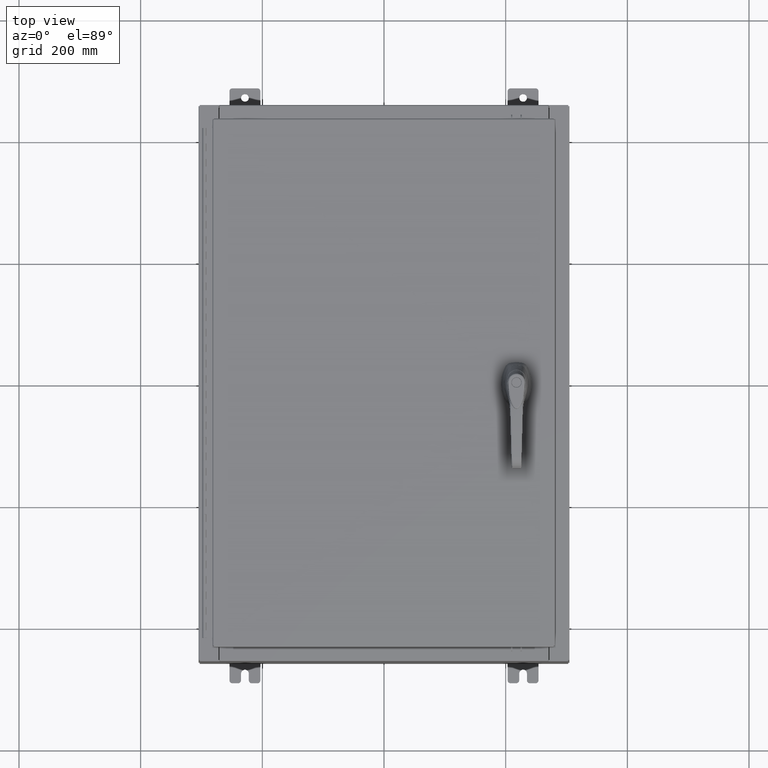
[diagram: clean part render]
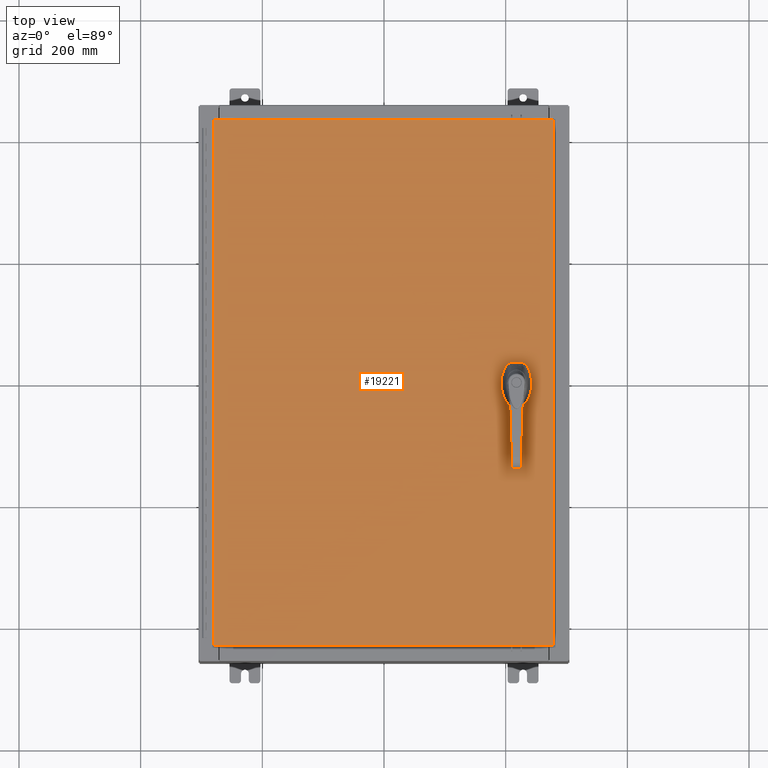
[diagram: same view with one face highlighted and labeled with its STEP entity id]
A machine part, top view. The second image highlights one B-rep face of the part: STEP entity #19221.
In plain terms, the highlighted planar face has unit normal (0, 0, -1).
Its self-contained STEP definition (entity closure, byte-faithful):
#834 = ORIENTED_EDGE ( 'NONE', *, *, #61946, .F. ) ;
#1081 = EDGE_LOOP ( 'NONE', ( #44366, #115699, #44043, #28251 ) ) ;
#1870 = EDGE_CURVE ( 'NONE', #55670, #34717, #4489, .T. ) ;
#1903 = VECTOR ( 'NONE', #99491, 39.37007874015748100 ) ;
#3862 = ORIENTED_EDGE ( 'NONE', *, *, #48414, .F. ) ;
#4440 = CARTESIAN_POINT ( 'NONE',  ( -10.99030000000000000, -17.00629999999999600, -2.048885995248197400E-016 ) ) ;
#4489 = LINE ( 'NONE', #18400, #122038 ) ;
#5265 = DIRECTION ( 'NONE',  ( -0.0000000000000000000, 0.0000000000000000000, 1.000000000000000000 ) ) ;
#6307 = VECTOR ( 'NONE', #29961, 39.37007874015748100 ) ;
#6599 = EDGE_CURVE ( 'NONE', #34717, #21752, #119972, .T. ) ;
#7768 = VERTEX_POINT ( 'NONE', #11355 ) ;
#8013 = CARTESIAN_POINT ( 'NONE',  ( 10.99029999999999600, -17.00629999999999200, -2.048885995248197400E-016 ) ) ;
#8557 = CARTESIAN_POINT ( 'NONE',  ( 8.778227370756305000, -0.4029999999999252000, 0.0000000000000000000 ) ) ;
#9651 = EDGE_LOOP ( 'NONE', ( #75545, #834, #97798, #29613, #20323, #105264, #113049, #111257 ) ) ;
#10014 = EDGE_CURVE ( 'NONE', #61696, #65025, #76400, .T. ) ;
#10288 = VERTEX_POINT ( 'NONE', #10877 ) ;
#10877 = CARTESIAN_POINT ( 'NONE',  ( 8.175000000000070000, -0.2002273707563079800, 0.0000000000000000000 ) ) ;
#11355 = CARTESIAN_POINT ( 'NONE',  ( 8.749499999999997600, -1.338000000000000100, 0.0000000000000000000 ) ) ;
#11398 = DIRECTION ( 'NONE',  ( 0.0000000000000000000, -1.000000000000000000, 0.0000000000000000000 ) ) ;
#14219 = CARTESIAN_POINT ( 'NONE',  ( 8.577999999999995900, -1.338000000000000100, 0.0000000000000000000 ) ) ;
#18400 = CARTESIAN_POINT ( 'NONE',  ( 0.0000000000000000000, 0.4029999999999252000, 0.0000000000000000000 ) ) ;
#19130 = EDGE_CURVE ( 'NONE', #65025, #123098, #66070, .T. ) ;
#19221 = ADVANCED_FACE ( 'NONE', ( #57144, #85376, #31720 ), #31426, .F. ) ;
#20323 = ORIENTED_EDGE ( 'NONE', *, *, #45690, .F. ) ;
#21752 = VERTEX_POINT ( 'NONE', #86114 ) ;
#23034 = AXIS2_PLACEMENT_3D ( 'NONE', #98423, #41377, #107981 ) ;
#23841 = DIRECTION ( 'NONE',  ( 1.000000000000000000, 0.0000000000000000000, 0.0000000000000000000 ) ) ;
#25267 = CARTESIAN_POINT ( 'NONE',  ( 10.99029999999999800, 17.00630000000000700, -2.048885995248197400E-016 ) ) ;
#26606 = VECTOR ( 'NONE', #84015, 39.37007874015748100 ) ;
#27871 = VERTEX_POINT ( 'NONE', #116179 ) ;
#28251 = ORIENTED_EDGE ( 'NONE', *, *, #19130, .T. ) ;
#28272 = EDGE_CURVE ( 'NONE', #83616, #104662, #80258, .T. ) ;
#29613 = ORIENTED_EDGE ( 'NONE', *, *, #102169, .F. ) ;
#29961 = DIRECTION ( 'NONE',  ( -1.000000000000000000, -0.0000000000000000000, -0.0000000000000000000 ) ) ;
#30103 = DIRECTION ( 'NONE',  ( -0.0000000000000000000, 0.0000000000000000000, 1.000000000000000000 ) ) ;
#30189 = CIRCLE ( 'NONE', #58421, 0.4499999999999156900 ) ;
#31426 = PLANE ( 'NONE',  #102783 ) ;
#31602 = CARTESIAN_POINT ( 'NONE',  ( 8.377772629243686700, 0.4029999999999252000, 0.0000000000000000000 ) ) ;
#31720 = FACE_BOUND ( 'NONE', #9651, .T. ) ;
#32012 = CIRCLE ( 'NONE', #113067, 0.1715000000000011500 ) ;
#32449 = CIRCLE ( 'NONE', #103871, 0.1715000000000011500 ) ;
#32904 = AXIS2_PLACEMENT_3D ( 'NONE', #110816, #53888, #120334 ) ;
#34717 = VERTEX_POINT ( 'NONE', #31602 ) ;
#35461 = CARTESIAN_POINT ( 'NONE',  ( 8.377772629243686700, -0.4029999999999252000, 0.0000000000000000000 ) ) ;
#35789 = VECTOR ( 'NONE', #45949, 39.37007874015748100 ) ;
#36516 = CARTESIAN_POINT ( 'NONE',  ( 0.0000000000000000000, -0.4029999999999252000, 0.0000000000000000000 ) ) ;
#36897 = VECTOR ( 'NONE', #37729, 39.37007874015748100 ) ;
#37729 = DIRECTION ( 'NONE',  ( 1.000000000000000000, -0.0000000000000000000, -0.0000000000000000000 ) ) ;
#37947 = VERTEX_POINT ( 'NONE', #53220 ) ;
#39104 = DIRECTION ( 'NONE',  ( -0.0000000000000000000, 0.0000000000000000000, 1.000000000000000000 ) ) ;
#41377 = DIRECTION ( 'NONE',  ( -0.0000000000000000000, 0.0000000000000000000, 1.000000000000000000 ) ) ;
#41619 = CARTESIAN_POINT ( 'NONE',  ( 8.980999999999921700, 2.450686610769031800E-014, 0.0000000000000000000 ) ) ;
#42807 = EDGE_CURVE ( 'NONE', #123098, #27871, #112831, .T. ) ;
#44043 = ORIENTED_EDGE ( 'NONE', *, *, #10014, .T. ) ;
#44366 = ORIENTED_EDGE ( 'NONE', *, *, #42807, .T. ) ;
#45690 = EDGE_CURVE ( 'NONE', #21752, #10288, #66701, .T. ) ;
#45949 = DIRECTION ( 'NONE',  ( 0.0000000000000000000, 1.000000000000000000, 0.0000000000000000000 ) ) ;
#48414 = EDGE_CURVE ( 'NONE', #37947, #7768, #32012, .T. ) ;
#50597 = DIRECTION ( 'NONE',  ( 0.0000000000000000000, 0.0000000000000000000, -1.000000000000000000 ) ) ;
#53112 = DIRECTION ( 'NONE',  ( -1.000000000000000000, 0.0000000000000000000, 0.0000000000000000000 ) ) ;
#53220 = CARTESIAN_POINT ( 'NONE',  ( 8.406499999999994100, -1.338000000000000100, 0.0000000000000000000 ) ) ;
#53888 = DIRECTION ( 'NONE',  ( -0.0000000000000000000, 0.0000000000000000000, 1.000000000000000000 ) ) ;
#55670 = VERTEX_POINT ( 'NONE', #63604 ) ;
#57144 = FACE_BOUND ( 'NONE', #107548, .T. ) ;
#58421 = AXIS2_PLACEMENT_3D ( 'NONE', #87174, #30103, #96706 ) ;
#61261 = LINE ( 'NONE', #8013, #35789 ) ;
#61696 = VERTEX_POINT ( 'NONE', #25267 ) ;
#61946 = EDGE_CURVE ( 'NONE', #104662, #121858, #75425, .T. ) ;
#63287 = CARTESIAN_POINT ( 'NONE',  ( 8.175000000000070000, 0.0000000000000000000, 0.0000000000000000000 ) ) ;
#63604 = CARTESIAN_POINT ( 'NONE',  ( 8.778227370756305000, 0.4029999999999252000, 0.0000000000000000000 ) ) ;
#65025 = VERTEX_POINT ( 'NONE', #99095 ) ;
#66070 = LINE ( 'NONE', #78080, #116601 ) ;
#66701 = LINE ( 'NONE', #63287, #89023 ) ;
#73848 = EDGE_CURVE ( 'NONE', #7768, #37947, #32449, .T. ) ;
#75334 = CARTESIAN_POINT ( 'NONE',  ( 8.980999999999921700, 0.2002273707563080300, 0.0000000000000000000 ) ) ;
#75425 = CIRCLE ( 'NONE', #23034, 0.4499999999999156900 ) ;
#75545 = ORIENTED_EDGE ( 'NONE', *, *, #121219, .T. ) ;
#76400 = LINE ( 'NONE', #102883, #6307 ) ;
#77924 = LINE ( 'NONE', #41619, #1903 ) ;
#78080 = CARTESIAN_POINT ( 'NONE',  ( -10.99030000000000500, 17.00630000000000700, -3.483106191921935600E-015 ) ) ;
#80258 = LINE ( 'NONE', #36516, #26606 ) ;
#80918 = DIRECTION ( 'NONE',  ( -0.0000000000000000000, 0.0000000000000000000, 1.000000000000000000 ) ) ;
#82281 = CIRCLE ( 'NONE', #32904, 0.4499999999999156900 ) ;
#83616 = VERTEX_POINT ( 'NONE', #35461 ) ;
#84015 = DIRECTION ( 'NONE',  ( 1.000000000000000000, 0.0000000000000000000, 0.0000000000000000000 ) ) ;
#84517 = AXIS2_PLACEMENT_3D ( 'NONE', #102696, #5265, #98537 ) ;
#85376 = FACE_OUTER_BOUND ( 'NONE', #1081, .T. ) ;
#86114 = CARTESIAN_POINT ( 'NONE',  ( 8.175000000000070000, 0.2002273707563079800, 0.0000000000000000000 ) ) ;
#87174 = CARTESIAN_POINT ( 'NONE',  ( 8.577999999999995900, 0.0000000000000000000, 0.0000000000000000000 ) ) ;
#89023 = VECTOR ( 'NONE', #110630, 39.37007874015748100 ) ;
#92638 = VERTEX_POINT ( 'NONE', #75334 ) ;
#96119 = CARTESIAN_POINT ( 'NONE',  ( 8.577999999999995900, -1.338000000000000100, 0.0000000000000000000 ) ) ;
#96706 = DIRECTION ( 'NONE',  ( 1.000000000000000000, 0.0000000000000000000, 0.0000000000000000000 ) ) ;
#97798 = ORIENTED_EDGE ( 'NONE', *, *, #28272, .F. ) ;
#98014 = CARTESIAN_POINT ( 'NONE',  ( 0.0000000000000000000, 0.0000000000000000000, 0.0000000000000000000 ) ) ;
#98423 = CARTESIAN_POINT ( 'NONE',  ( 8.577999999999995900, 0.0000000000000000000, 0.0000000000000000000 ) ) ;
#98537 = DIRECTION ( 'NONE',  ( 1.000000000000000000, 0.0000000000000000000, 0.0000000000000000000 ) ) ;
#99095 = CARTESIAN_POINT ( 'NONE',  ( -10.99030000000000500, 17.00630000000000700, -3.483106191921935600E-015 ) ) ;
#99491 = DIRECTION ( 'NONE',  ( 2.728745808672812900E-015, -1.000000000000000000, 0.0000000000000000000 ) ) ;
#102169 = EDGE_CURVE ( 'NONE', #10288, #83616, #82281, .T. ) ;
#102696 = CARTESIAN_POINT ( 'NONE',  ( 8.577999999999995900, 0.0000000000000000000, 0.0000000000000000000 ) ) ;
#102783 = AXIS2_PLACEMENT_3D ( 'NONE', #98014, #50597, #117133 ) ;
#102883 = CARTESIAN_POINT ( 'NONE',  ( 10.99029999999999800, 17.00630000000000700, -2.048885995248197400E-016 ) ) ;
#103871 = AXIS2_PLACEMENT_3D ( 'NONE', #96119, #39104, #105720 ) ;
#104662 = VERTEX_POINT ( 'NONE', #8557 ) ;
#105264 = ORIENTED_EDGE ( 'NONE', *, *, #6599, .F. ) ;
#105720 = DIRECTION ( 'NONE',  ( 1.000000000000000000, 0.0000000000000000000, 0.0000000000000000000 ) ) ;
#107548 = EDGE_LOOP ( 'NONE', ( #122714, #3862 ) ) ;
#107981 = DIRECTION ( 'NONE',  ( 1.000000000000000000, 0.0000000000000000000, 0.0000000000000000000 ) ) ;
#109195 = EDGE_CURVE ( 'NONE', #27871, #61696, #61261, .T. ) ;
#110630 = DIRECTION ( 'NONE',  ( 0.0000000000000000000, -1.000000000000000000, 0.0000000000000000000 ) ) ;
#110816 = CARTESIAN_POINT ( 'NONE',  ( 8.577999999999995900, 0.0000000000000000000, 0.0000000000000000000 ) ) ;
#111257 = ORIENTED_EDGE ( 'NONE', *, *, #119167, .F. ) ;
#112831 = LINE ( 'NONE', #122909, #36897 ) ;
#112999 = CARTESIAN_POINT ( 'NONE',  ( 8.980999999999921700, -0.2002273707563079800, 0.0000000000000000000 ) ) ;
#113049 = ORIENTED_EDGE ( 'NONE', *, *, #1870, .F. ) ;
#113067 = AXIS2_PLACEMENT_3D ( 'NONE', #14219, #80918, #23841 ) ;
#115699 = ORIENTED_EDGE ( 'NONE', *, *, #109195, .T. ) ;
#116179 = CARTESIAN_POINT ( 'NONE',  ( 10.99029999999999600, -17.00629999999999200, -2.048885995248197400E-016 ) ) ;
#116601 = VECTOR ( 'NONE', #11398, 39.37007874015748100 ) ;
#117133 = DIRECTION ( 'NONE',  ( -1.000000000000000000, 0.0000000000000000000, -0.0000000000000000000 ) ) ;
#119167 = EDGE_CURVE ( 'NONE', #92638, #55670, #30189, .T. ) ;
#119972 = CIRCLE ( 'NONE', #84517, 0.4499999999999156900 ) ;
#120334 = DIRECTION ( 'NONE',  ( 1.000000000000000000, 0.0000000000000000000, 0.0000000000000000000 ) ) ;
#121219 = EDGE_CURVE ( 'NONE', #92638, #121858, #77924, .T. ) ;
#121858 = VERTEX_POINT ( 'NONE', #112999 ) ;
#122038 = VECTOR ( 'NONE', #53112, 39.37007874015748100 ) ;
#122714 = ORIENTED_EDGE ( 'NONE', *, *, #73848, .F. ) ;
#122909 = CARTESIAN_POINT ( 'NONE',  ( -10.99030000000000000, -17.00629999999999600, -2.048885995248197400E-016 ) ) ;
#123098 = VERTEX_POINT ( 'NONE', #4440 ) ;